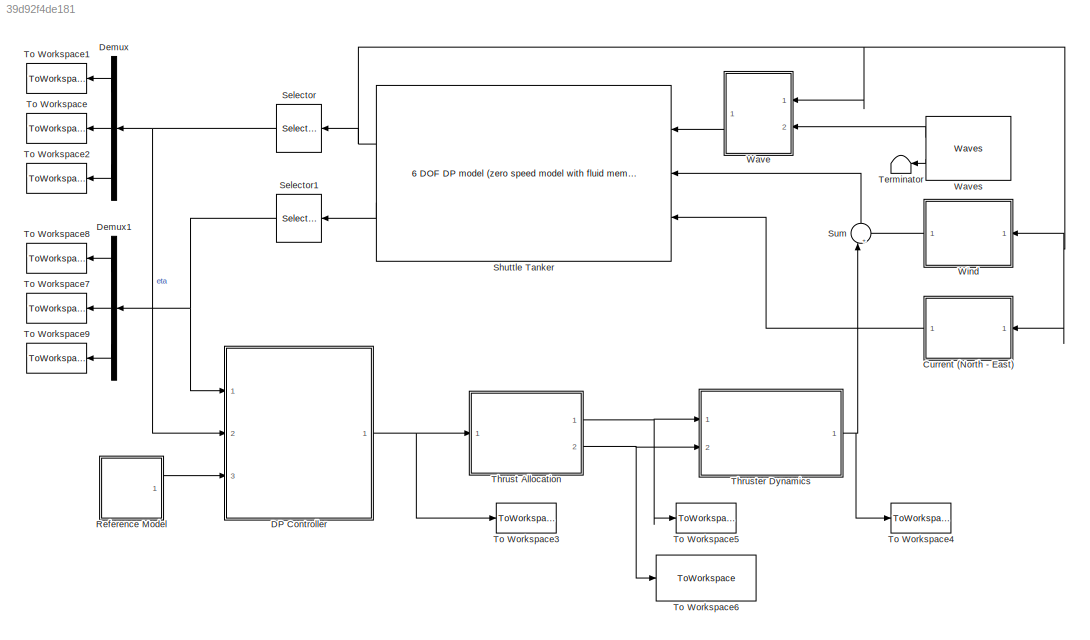
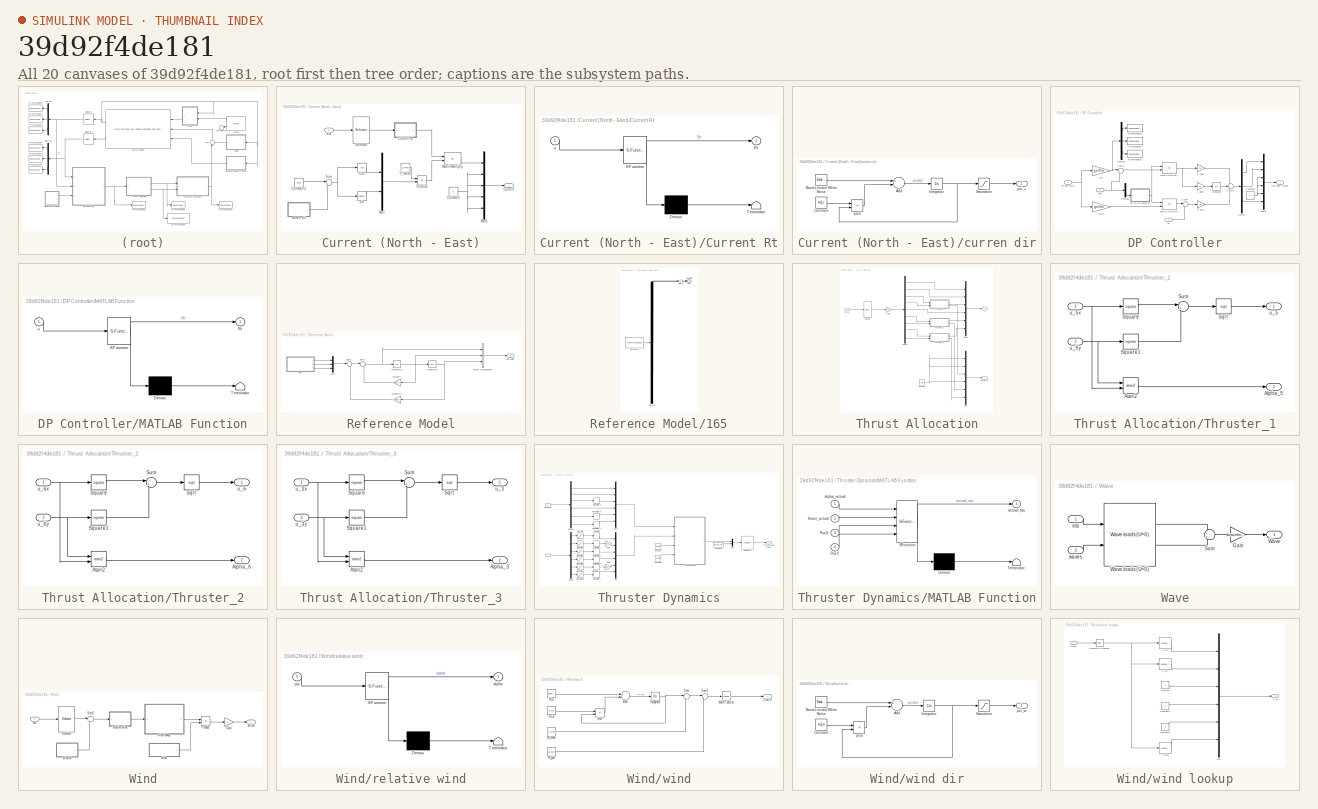
[diagram: thumbnail index - all 20 canvases of the model, root first then tree order]
MODEL slx_39d92f4de181
KIND model
CONFIG AbsTol = auto
CONFIG EnableMultiTasking = off
CONFIG FixedStep = 0.1
CONFIG MaxStep = auto
CONFIG MinStep = auto
CONFIG RelTol = 1e-3
CONFIG SampleTimeConstraint = Unconstrained
CONFIG Solver = FixedStepAuto
CONFIG SolverName = FixedStepAuto
CONFIG StartTime = 0.0
CONFIG StopTime = 2000
BLOCK [SubSystem] Current (North - East)
  Commented = on
  Ports = [1, 1]
  RequestExecContextInheritance = off
BLOCK [Constant] Current (North - East)/Constant
  Value = 0
BLOCK [Constant] Current (North - East)/Constant1
  Value = phi_c
BLOCK [Trigonometry] Current (North - East)/Cos
  Operator = cos
  Ports = [1, 1]
BLOCK [Outport] Current (North - East)/Current
  IconDisplay = Port number
BLOCK [SubSystem] Current (North - East)/Current Rt
  ErrorFcn = Stateflow.Translate.translate
  PermitHierarchicalResolution = ExplicitOnly
  Ports = [1, 1]
  RequestExecContextInheritance = off
  SFBlockType = MATLAB Function
  TreatAsAtomicUnit = on
BLOCK [Demux] Current (North - East)/Current Rt/ Demux 
  Outputs = 1
  Ports = [1, 1]
BLOCK [S-Function] Current (North - East)/Current Rt/ SFunction 
  EnableBusSupport = on
  FunctionName = sf_sfun
  PortCounts = [1 2]
  Ports = [1, 2]
  SFcnIsStateOwnerBlock = off
  SFunctionDeploymentMode = off
  Tag = Stateflow S-Function simulation2_Fault 3
BLOCK [Terminator] Current (North - East)/Current Rt/ Terminator 
BLOCK [Outport] Current (North - East)/Current Rt/Rt
  IconDisplay = Port number
BLOCK [Inport] Current (North - East)/Current Rt/u
  IconDisplay = Port number
BLOCK [Product] Current (North - East)/Matrix Multiply
  InputSameDT = off
  Multiplication = Matrix(*)
  OutDataTypeStr = Inherit: Inherit via internal rule
  Ports = [2, 1]
  RndMeth = Floor
  SaturateOnIntegerOverflow = off
BLOCK [Mux] Current (North - East)/Mux
  DisplayOption = bar
  Inputs = 2
  Ports = [2, 1]
BLOCK [Mux] Current (North - East)/Mux1
  DisplayOption = bar
  Inputs = 5
  Ports = [5, 1]
BLOCK [Product] Current (North - East)/Product
  InputSameDT = off
  OutDataTypeStr = Inherit: Inherit via internal rule
  Ports = [2, 1]
  RndMeth = Floor
  SaturateOnIntegerOverflow = off
BLOCK [Selector] Current (North - East)/Selector
  IndexOptions = Index vector (dialog)
  Indices = [6]
  InputPortWidth = 6
  OutputSizes = 1
  Ports = [1, 1]
BLOCK [Trigonometry] Current (North - East)/Sin
  Ports = [1, 1]
BLOCK [Sum] Current (North - East)/Sum
  IconShape = round
  InputSameDT = off
  Inputs = |++
  OutDataTypeStr = Inherit: Inherit via internal rule
  Ports = [2, 1]
  SaturateOnIntegerOverflow = off
BLOCK [Constant] Current (North - East)/V_mean
  Value = V_mean
BLOCK [SubSystem] Current (North - East)/curren dir
  Ports = [0, 1]
  RequestExecContextInheritance = off
BLOCK [Sum] Current (North - East)/curren dir/Add
  InputSameDT = off
  Inputs = +-
  OutDataTypeStr = Inherit: Inherit via internal rule
  Ports = [2, 1]
  SaturateOnIntegerOverflow = off
BLOCK [Reference] Current (North - East)/curren dir/Band-Limited White Noise  REF=simulink/Sources/Band-Limited
White Noise
  Ports = [0, 1]
  SourceBlock = simulink/Sources/Band-Limited\nWhite Noise
  SourceProductBaseCode = SL
  SourceProductName = Simulink
  SourceType = Band-Limited White Noise.
BLOCK [Constant] Current (North - East)/curren dir/Constant
  Value = mu2_c
BLOCK [Integrator] Current (North - East)/curren dir/Integrator
  Ports = [1, 1]
BLOCK [Saturate] Current (North - East)/curren dir/Saturation
  InputPortMap = u0
  LowerLimit = 5*pi/180
  Ports = [1, 1]
  UpperLimit = 5*pi/180
BLOCK [Product] Current (North - East)/curren dir/prod
  InputSameDT = off
  Inputs = **
  OutDataTypeStr = Inherit: Inherit via internal rule
  Ports = [2, 1]
  RndMeth = Floor
  SaturateOnIntegerOverflow = off
BLOCK [Outport] Current (North - East)/curren dir/psi_c 
  IconDisplay = Port number
BLOCK [Inport] Current (North - East)/eta
  IconDisplay = Port number
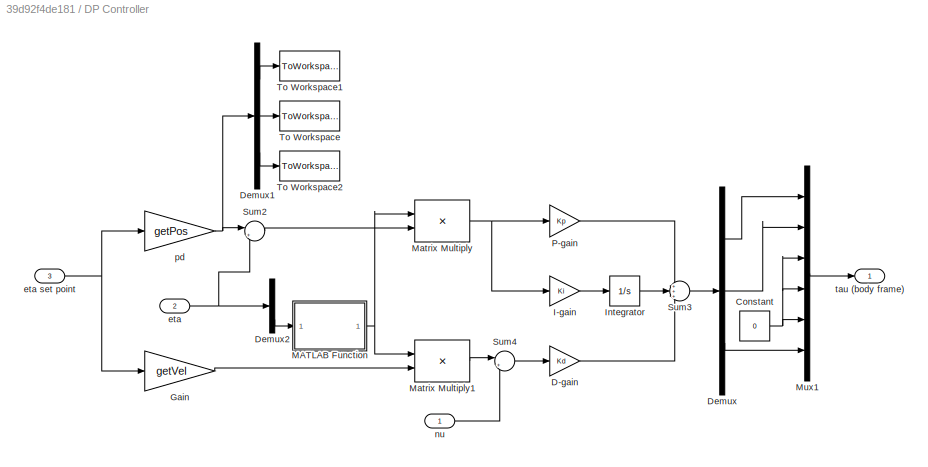
BLOCK [SubSystem] DP Controller
  Ports = [3, 1]
  RequestExecContextInheritance = off
BLOCK [Constant] DP Controller/Constant
  Value = 0
BLOCK [Gain] DP Controller/D-gain
  Gain = Kd
  Multiplication = Matrix(K*u)
  OutDataTypeStr = Inherit: Inherit via internal rule
  ParamDataTypeStr = Inherit: Inherit via internal rule
  SaturateOnIntegerOverflow = off
BLOCK [Demux] DP Controller/Demux
  DisplayOption = bar
  Outputs = 3
  Ports = [1, 3]
BLOCK [Demux] DP Controller/Demux1
  DisplayOption = bar
  Outputs = 3
  Ports = [1, 3]
BLOCK [Demux] DP Controller/Demux2
  DisplayOption = bar
  Outputs = 3
  Ports = [1, 3]
BLOCK [Gain] DP Controller/Gain
  Gain = getVel
  Multiplication = Matrix(u*K)
  OutDataTypeStr = Inherit: Inherit via internal rule
  ParamDataTypeStr = Inherit: Inherit via internal rule
  SaturateOnIntegerOverflow = off
BLOCK [Gain] DP Controller/I-gain
  Gain = Ki
  Multiplication = Matrix(K*u)
  OutDataTypeStr = Inherit: Inherit via internal rule
  ParamDataTypeStr = Inherit: Inherit via internal rule
  SaturateOnIntegerOverflow = off
BLOCK [Integrator] DP Controller/Integrator
  Ports = [1, 1]
BLOCK [SubSystem] DP Controller/MATLAB Function
  ErrorFcn = Stateflow.Translate.translate
  PermitHierarchicalResolution = ExplicitOnly
  Ports = [1, 1]
  RequestExecContextInheritance = off
  SFBlockType = MATLAB Function
  TreatAsAtomicUnit = on
BLOCK [Demux] DP Controller/MATLAB Function/ Demux 
  Outputs = 1
  Ports = [1, 1]
BLOCK [S-Function] DP Controller/MATLAB Function/ SFunction 
  EnableBusSupport = on
  FunctionName = sf_sfun
  PortCounts = [1 2]
  Ports = [1, 2]
  SFcnIsStateOwnerBlock = off
  SFunctionDeploymentMode = off
  Tag = Stateflow S-Function simulation2_Fault 1
BLOCK [Terminator] DP Controller/MATLAB Function/ Terminator 
BLOCK [Outport] DP Controller/MATLAB Function/Rt
  IconDisplay = Port number
BLOCK [Inport] DP Controller/MATLAB Function/u
  IconDisplay = Port number
BLOCK [Product] DP Controller/Matrix Multiply
  InputSameDT = off
  Multiplication = Matrix(*)
  OutDataTypeStr = Inherit: Inherit via internal rule
  Ports = [2, 1]
  RndMeth = Floor
  SaturateOnIntegerOverflow = off
BLOCK [Product] DP Controller/Matrix Multiply1
  InputSameDT = off
  Multiplication = Matrix(*)
  OutDataTypeStr = Inherit: Inherit via internal rule
  Ports = [2, 1]
  RndMeth = Floor
  SaturateOnIntegerOverflow = off
BLOCK [Mux] DP Controller/Mux1
  DisplayOption = bar
  Inputs = 6
  Ports = [6, 1]
BLOCK [Gain] DP Controller/P-gain
  Gain = Kp
  Multiplication = Matrix(K*u)
  OutDataTypeStr = Inherit: Inherit via internal rule
  ParamDataTypeStr = Inherit: Inherit via internal rule
  SaturateOnIntegerOverflow = off
BLOCK [Sum] DP Controller/Sum2
  IconShape = round
  InputSameDT = off
  Inputs = |+-
  OutDataTypeStr = Inherit: Inherit via internal rule
  Ports = [2, 1]
  SaturateOnIntegerOverflow = off
BLOCK [Sum] DP Controller/Sum3
  IconShape = round
  InputSameDT = off
  Inputs = +++
  OutDataTypeStr = Inherit: Inherit via internal rule
  Ports = [3, 1]
  SaturateOnIntegerOverflow = off
BLOCK [Sum] DP Controller/Sum4
  IconShape = round
  InputSameDT = off
  Inputs = |+-
  OutDataTypeStr = Inherit: Inherit via internal rule
  Ports = [2, 1]
  SaturateOnIntegerOverflow = off
BLOCK [ToWorkspace] DP Controller/To Workspace
  FixptAsFi = on
  MaxDataPoints = inf
  Ports = [1]
  SampleTime = -1
  Save2DSignal = 3-D array (concatenate along third dimension)
  SaveFormat = Timeseries
  VariableName = ref_east
BLOCK [ToWorkspace] DP Controller/To Workspace1
  FixptAsFi = on
  MaxDataPoints = inf
  Ports = [1]
  SampleTime = -1
  Save2DSignal = 3-D array (concatenate along third dimension)
  SaveFormat = Timeseries
  VariableName = ref_north
BLOCK [ToWorkspace] DP Controller/To Workspace2
  FixptAsFi = on
  MaxDataPoints = inf
  Ports = [1]
  SampleTime = -1
  Save2DSignal = 3-D array (concatenate along third dimension)
  SaveFormat = Timeseries
  VariableName = ref_yaw
BLOCK [Inport] DP Controller/eta
  IconDisplay = Port number
  Port = 2
BLOCK [Inport] DP Controller/eta set point
  IconDisplay = Port number
  Port = 3
BLOCK [Inport] DP Controller/nu
  IconDisplay = Port number
BLOCK [Gain] DP Controller/pd
  Gain = getPos
  Multiplication = Matrix(u*K)
  OutDataTypeStr = Inherit: Inherit via internal rule
  ParamDataTypeStr = Inherit: Inherit via internal rule
  SaturateOnIntegerOverflow = off
BLOCK [Outport] DP Controller/tau (body frame)
  IconDisplay = Port number
BLOCK [Demux] Demux
  DisplayOption = bar
  Outputs = 3
  Ports = [1, 3]
BLOCK [Demux] Demux1
  DisplayOption = bar
  Outputs = 3
  Ports = [1, 3]
BLOCK [SubSystem] Reference Model
  Ports = [0, 1]
  RequestExecContextInheritance = off
BLOCK [SubSystem] Reference Model/165
  ClipboardFcn = sigbuilder_block('clipboard');
  CloseFcn = sigbuilder_block('close');
  ContinueFcn = sigbuilder_block('continue');
  CopyFcn = sigbuilder_block('copy');
  DeleteFcn = sigbuilder_block('delete');
  LoadFcn = sigbuilder_block('load');
  MaskHideContents = on
  ModelCloseFcn = sigbuilder_block('modelClose');
  NameChangeFcn = sigbuilder_block('namechange');
  OpenFcn = sigbuilder_block('open',[5.4 30 1141.2 523.8 ]);
  PauseFcn = sigbuilder_block('pause');
  Ports = [0, 3]
  PreSaveFcn = sigbuilder_block('preSave');
  RequestExecContextInheritance = off
  StartFcn = sigbuilder_block('start');
  StopFcn = sigbuilder_block('stop');
  Tag = STV Subsys
BLOCK [Demux] Reference Model/165/Demux
  Outputs = 3
  Ports = [1, 3]
  Tag = STV Demux
BLOCK [Outport] Reference Model/165/East
  IconDisplay = Port number
  Port = 2
  Tag = STV Outport
BLOCK [FromWorkspace] Reference Model/165/FromWs
  SampleTime = 0
  Tag = STV FromWs
  VariableName = tuvar
  ZeroCross = on
BLOCK [Outport] Reference Model/165/Heading
  IconDisplay = Port number
  Port = 3
  Tag = STV Outport
BLOCK [Outport] Reference Model/165/North
  IconDisplay = Port number
  Tag = STV Outport
BLOCK [Integrator] Reference Model/Integrator1
  Ports = [1, 1]
BLOCK [Integrator] Reference Model/Integrator2
  Ports = [1, 1]
BLOCK [Mux] Reference Model/Mux
  DisplayOption = bar
  Inputs = 3
  Ports = [3, 1]
BLOCK [Outport] Reference Model/Set-point
  IconDisplay = Port number
BLOCK [Sum] Reference Model/Sum1
  IconShape = round
  InputSameDT = off
  Inputs = |+-
  OutDataTypeStr = Inherit: Inherit via internal rule
  Ports = [2, 1]
  SaturateOnIntegerOverflow = off
BLOCK [Sum] Reference Model/Sum2
  IconShape = round
  InputSameDT = off
  Inputs = |+-
  OutDataTypeStr = Inherit: Inherit via internal rule
  Ports = [2, 1]
  SaturateOnIntegerOverflow = off
BLOCK [Concatenate] Reference Model/Vector Concatenate
  ConcatenateDimension = 2
  Mode = Multidimensional array
  NumInputs = 3
  Ports = [3, 1]
BLOCK [Gain] Reference Model/omega*v
  Gain = Omega*165.7
  Multiplication = Matrix(K*u)
  OutDataTypeStr = Inherit: Inherit via internal rule
  ParamDataTypeStr = Inherit: Inherit via internal rule
  SaturateOnIntegerOverflow = off
BLOCK [Gain] Reference Model/omega^2*x
  Gain = (omega^2)*165.7
  Multiplication = Matrix(K*u)
  OutDataTypeStr = Inherit: Inherit via internal rule
  ParamDataTypeStr = Inherit: Inherit via internal rule
  SaturateOnIntegerOverflow = off
BLOCK [Selector] Selector
  IndexOptions = Index vector (dialog)
  Indices = [1 2 6]
  InputPortWidth = 6
  OutputSizes = 1
  Ports = [1, 1]
BLOCK [Selector] Selector1
  IndexOptions = Index vector (dialog)
  Indices = [1 2 6]
  InputPortWidth = 6
  OutputSizes = 1
  Ports = [1, 1]
BLOCK [Reference] Shuttle Tanker  REF=marine_hydro/Hydro Library/6 DOF DP model
 (zero speed model with fluid memory)
  Ports = [3, 2]
  SourceBlock = marine_hydro/Hydro Library/6 DOF DP model\n (zero speed model with fluid memory)
  SourceProductName = MSS Hydro
  SourceType = 6 DOF zero speed model
BLOCK [Sum] Sum
  IconShape = round
  InputSameDT = off
  Inputs = |++
  OutDataTypeStr = Inherit: Inherit via internal rule
  Ports = [2, 1]
  SaturateOnIntegerOverflow = off
BLOCK [Terminator] Terminator
  Commented = on
BLOCK [SubSystem] Thrust Allocation
  Ports = [1, 2]
  RequestExecContextInheritance = off
BLOCK [Constant] Thrust Allocation/Constant
  Value = pi/2
BLOCK [Demux] Thrust Allocation/Demux
  DisplayOption = bar
  Outputs = 9
  Ports = [1, 9]
BLOCK [Gain] Thrust Allocation/Gain
  Gain = Ce
  Multiplication = Matrix(K*u)
  OutDataTypeStr = Inherit: Inherit via internal rule
  ParamDataTypeStr = Inherit: Inherit via internal rule
  SaturateOnIntegerOverflow = off
BLOCK [Mux] Thrust Allocation/Mux
  DisplayOption = bar
  Inputs = 6
  Ports = [6, 1]
BLOCK [Mux] Thrust Allocation/Mux2
  DisplayOption = bar
  Inputs = 6
  Ports = [6, 1]
BLOCK [Selector] Thrust Allocation/Selector
  IndexOptions = Index vector (dialog)
  Indices = [1 2 6]
  InputPortWidth = 6
  OutputSizes = 1
  Ports = [1, 1]
BLOCK [SubSystem] Thrust Allocation/Thruster_1
  Ports = [2, 2]
  RequestExecContextInheritance = off
BLOCK [Outport] Thrust Allocation/Thruster_1/Alpha_5
  IconDisplay = Port number
  Port = 2
BLOCK [Trigonometry] Thrust Allocation/Thruster_1/Atan2
  Operator = atan2
  Ports = [2, 1]
BLOCK [Sqrt] Thrust Allocation/Thruster_1/Sqrt
BLOCK [Math] Thrust Allocation/Thruster_1/Square
  Operator = square
  Ports = [1, 1]
BLOCK [Math] Thrust Allocation/Thruster_1/Square1
  Operator = square
  Ports = [1, 1]
BLOCK [Sum] Thrust Allocation/Thruster_1/Sum
  IconShape = round
  InputSameDT = off
  Inputs = |++
  OutDataTypeStr = Inherit: Inherit via internal rule
  Ports = [2, 1]
  SaturateOnIntegerOverflow = off
BLOCK [Outport] Thrust Allocation/Thruster_1/u_5
  IconDisplay = Port number
BLOCK [Inport] Thrust Allocation/Thruster_1/u_5x
  IconDisplay = Port number
BLOCK [Inport] Thrust Allocation/Thruster_1/u_5y
  IconDisplay = Port number
  Port = 2
BLOCK [SubSystem] Thrust Allocation/Thruster_2
  Ports = [2, 2]
  RequestExecContextInheritance = off
BLOCK [Outport] Thrust Allocation/Thruster_2/Alpha_6
  IconDisplay = Port number
  Port = 2
BLOCK [Trigonometry] Thrust Allocation/Thruster_2/Atan2
  Operator = atan2
  Ports = [2, 1]
BLOCK [Sqrt] Thrust Allocation/Thruster_2/Sqrt
BLOCK [Math] Thrust Allocation/Thruster_2/Square
  Operator = square
  Ports = [1, 1]
BLOCK [Math] Thrust Allocation/Thruster_2/Square1
  Operator = square
  Ports = [1, 1]
BLOCK [Sum] Thrust Allocation/Thruster_2/Sum
  IconShape = round
  InputSameDT = off
  Inputs = |++
  OutDataTypeStr = Inherit: Inherit via internal rule
  Ports = [2, 1]
  SaturateOnIntegerOverflow = off
BLOCK [Outport] Thrust Allocation/Thruster_2/u_6
  IconDisplay = Port number
BLOCK [Inport] Thrust Allocation/Thruster_2/u_6x
  IconDisplay = Port number
BLOCK [Inport] Thrust Allocation/Thruster_2/u_6y
  IconDisplay = Port number
  Port = 2
BLOCK [SubSystem] Thrust Allocation/Thruster_3
  Ports = [2, 2]
  RequestExecContextInheritance = off
BLOCK [Outport] Thrust Allocation/Thruster_3/Alpha_3
  IconDisplay = Port number
  Port = 2
BLOCK [Trigonometry] Thrust Allocation/Thruster_3/Atan2
  Operator = atan2
  Ports = [2, 1]
BLOCK [Sqrt] Thrust Allocation/Thruster_3/Sqrt
BLOCK [Math] Thrust Allocation/Thruster_3/Square
  Operator = square
  Ports = [1, 1]
BLOCK [Math] Thrust Allocation/Thruster_3/Square1
  Operator = square
  Ports = [1, 1]
BLOCK [Sum] Thrust Allocation/Thruster_3/Sum
  IconShape = round
  InputSameDT = off
  Inputs = |++
  OutDataTypeStr = Inherit: Inherit via internal rule
  Ports = [2, 1]
  SaturateOnIntegerOverflow = off
BLOCK [Outport] Thrust Allocation/Thruster_3/u_3
  IconDisplay = Port number
BLOCK [Inport] Thrust Allocation/Thruster_3/u_3x
  IconDisplay = Port number
BLOCK [Inport] Thrust Allocation/Thruster_3/u_3y
  IconDisplay = Port number
  Port = 2
BLOCK [Outport] Thrust Allocation/alpha [rad]
  IconDisplay = Port number
  Port = 2
BLOCK [Inport] Thrust Allocation/tau_d
  IconDisplay = Port number
BLOCK [Outport] Thrust Allocation/u
  IconDisplay = Port number
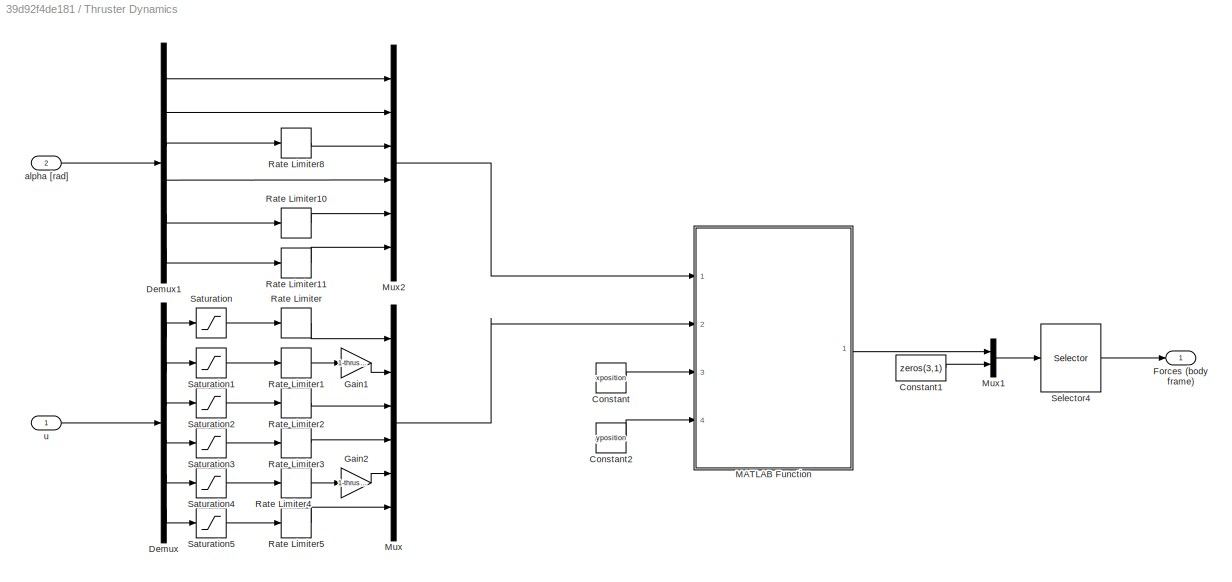
BLOCK [SubSystem] Thruster Dynamics
  Ports = [2, 1]
  RequestExecContextInheritance = off
BLOCK [Constant] Thruster Dynamics/Constant
  Value = xposition
BLOCK [Constant] Thruster Dynamics/Constant1
  Value = zeros(3,1)
BLOCK [Constant] Thruster Dynamics/Constant2
  Value = yposition
BLOCK [Demux] Thruster Dynamics/Demux
  DisplayOption = bar
  Outputs = 6
  Ports = [1, 6]
BLOCK [Demux] Thruster Dynamics/Demux1
  DisplayOption = bar
  Outputs = 6
  Ports = [1, 6]
BLOCK [Outport] Thruster Dynamics/Forces (body frame) 
  IconDisplay = Port number
BLOCK [Gain] Thruster Dynamics/Gain1
  Gain = 1-thrusterfault
  OutDataTypeStr = Inherit: Inherit via internal rule
  ParamDataTypeStr = Inherit: Inherit via internal rule
  SaturateOnIntegerOverflow = off
BLOCK [Gain] Thruster Dynamics/Gain2
  Gain = 1-thrusterfault
  OutDataTypeStr = Inherit: Inherit via internal rule
  ParamDataTypeStr = Inherit: Inherit via internal rule
  SaturateOnIntegerOverflow = off
BLOCK [SubSystem] Thruster Dynamics/MATLAB Function
  ErrorFcn = Stateflow.Translate.translate
  PermitHierarchicalResolution = ExplicitOnly
  Ports = [4, 1]
  RequestExecContextInheritance = off
  SFBlockType = MATLAB Function
  TreatAsAtomicUnit = on
BLOCK [Demux] Thruster Dynamics/MATLAB Function/ Demux 
  Outputs = 1
  Ports = [1, 1]
BLOCK [S-Function] Thruster Dynamics/MATLAB Function/ SFunction 
  EnableBusSupport = on
  FunctionName = sf_sfun
  PortCounts = [4 2]
  Ports = [4, 2]
  SFcnIsStateOwnerBlock = off
  SFunctionDeploymentMode = off
  Tag = Stateflow S-Function simulation2_Fault 4
BLOCK [Terminator] Thruster Dynamics/MATLAB Function/ Terminator 
BLOCK [Inport] Thruster Dynamics/MATLAB Function/PosX
  IconDisplay = Port number
  Port = 3
BLOCK [Inport] Thruster Dynamics/MATLAB Function/PosY
  IconDisplay = Port number
  Port = 4
BLOCK [Outport] Thruster Dynamics/MATLAB Function/actual_tau
  IconDisplay = Port number
BLOCK [Inport] Thruster Dynamics/MATLAB Function/alpha_actual
  IconDisplay = Port number
BLOCK [Inport] Thruster Dynamics/MATLAB Function/thrust_actual
  IconDisplay = Port number
  Port = 2
BLOCK [Mux] Thruster Dynamics/Mux
  DisplayOption = bar
  Inputs = 6
  Ports = [6, 1]
BLOCK [Mux] Thruster Dynamics/Mux1
  DisplayOption = bar
  Inputs = 2
  Ports = [2, 1]
BLOCK [Mux] Thruster Dynamics/Mux2
  DisplayOption = bar
  Inputs = 6
  Ports = [6, 1]
BLOCK [RateLimiter] Thruster Dynamics/Rate Limiter
  FallingSlewLimit = -thrustrate_1
  RisingSlewLimit = thrustrate_1
  SampleTimeMode = inherited
BLOCK [RateLimiter] Thruster Dynamics/Rate Limiter1
  FallingSlewLimit = -thrustrate_2
  RisingSlewLimit = thrustrate_2
  SampleTimeMode = inherited
BLOCK [RateLimiter] Thruster Dynamics/Rate Limiter10
  FallingSlewLimit = -rotationspeed_5
  RisingSlewLimit = rotationspeed_5
  SampleTimeMode = inherited
BLOCK [RateLimiter] Thruster Dynamics/Rate Limiter11
  FallingSlewLimit = -rotationspeed_6
  RisingSlewLimit = rotationspeed_6
  SampleTimeMode = inherited
BLOCK [RateLimiter] Thruster Dynamics/Rate Limiter2
  FallingSlewLimit = -thrustrate_3
  RisingSlewLimit = thrustrate_3
  SampleTimeMode = inherited
BLOCK [RateLimiter] Thruster Dynamics/Rate Limiter3
  FallingSlewLimit = -thrustrate_4
  RisingSlewLimit = thrustrate_4
  SampleTimeMode = inherited
BLOCK [RateLimiter] Thruster Dynamics/Rate Limiter4
  FallingSlewLimit = -thrustrate_5
  RisingSlewLimit = thrustrate_5
  SampleTimeMode = inherited
BLOCK [RateLimiter] Thruster Dynamics/Rate Limiter5
  FallingSlewLimit = -thrustrate_6
  RisingSlewLimit = thrustrate_6
  SampleTimeMode = inherited
BLOCK [RateLimiter] Thruster Dynamics/Rate Limiter8
  FallingSlewLimit = -rotationspeed_3
  RisingSlewLimit = rotationspeed_3
  SampleTimeMode = inherited
BLOCK [Saturate] Thruster Dynamics/Saturation
  InputPortMap = u0
  LowerLimit = -thrust_1
  Ports = [1, 1]
  UpperLimit = thrust_1
BLOCK [Saturate] Thruster Dynamics/Saturation1
  InputPortMap = u0
  LowerLimit = -thrust_2
  Ports = [1, 1]
  UpperLimit = thrust_2
BLOCK [Saturate] Thruster Dynamics/Saturation2
  InputPortMap = u0
  LowerLimit = -thrust_3
  Ports = [1, 1]
  UpperLimit = thrust_3
BLOCK [Saturate] Thruster Dynamics/Saturation3
  InputPortMap = u0
  LowerLimit = -thrust_4
  Ports = [1, 1]
  UpperLimit = thrust_4
BLOCK [Saturate] Thruster Dynamics/Saturation4
  InputPortMap = u0
  LowerLimit = -thrust_5
  Ports = [1, 1]
  UpperLimit = thrust_5
BLOCK [Saturate] Thruster Dynamics/Saturation5
  InputPortMap = u0
  LowerLimit = -thrust_6
  Ports = [1, 1]
  UpperLimit = thrust_6
BLOCK [Selector] Thruster Dynamics/Selector4
  IndexOptions = Index vector (dialog)
  Indices = [1 2 4 5 6 3]
  InputPortWidth = 6
  OutputSizes = 1
  Ports = [1, 1]
BLOCK [Inport] Thruster Dynamics/alpha [rad]
  IconDisplay = Port number
  Port = 2
BLOCK [Inport] Thruster Dynamics/u
  IconDisplay = Port number
BLOCK [ToWorkspace] To Workspace
  FixptAsFi = on
  MaxDataPoints = inf
  Ports = [1]
  SampleTime = -1
  Save2DSignal = 3-D array (concatenate along third dimension)
  SaveFormat = Timeseries
  VariableName = eta_east
BLOCK [ToWorkspace] To Workspace1
  FixptAsFi = on
  MaxDataPoints = inf
  Ports = [1]
  SampleTime = -1
  Save2DSignal = 3-D array (concatenate along third dimension)
  SaveFormat = Timeseries
  VariableName = eta_north
BLOCK [ToWorkspace] To Workspace2
  FixptAsFi = on
  MaxDataPoints = inf
  Ports = [1]
  SampleTime = -1
  Save2DSignal = 3-D array (concatenate along third dimension)
  SaveFormat = Timeseries
  VariableName = eta_yaw
BLOCK [ToWorkspace] To Workspace3
  FixptAsFi = on
  MaxDataPoints = inf
  Ports = [1]
  SampleTime = -1
  Save2DSignal = 3-D array (concatenate along third dimension)
  SaveFormat = Timeseries
  VariableName = tau_bd
BLOCK [ToWorkspace] To Workspace4
  FixptAsFi = on
  MaxDataPoints = inf
  Ports = [1]
  SampleTime = -1
  Save2DSignal = 3-D array (concatenate along third dimension)
  SaveFormat = Timeseries
  VariableName = force_bd
BLOCK [ToWorkspace] To Workspace5
  FixptAsFi = on
  MaxDataPoints = inf
  Ports = [1]
  SampleTime = -1
  Save2DSignal = 3-D array (concatenate along third dimension)
  SaveFormat = Timeseries
  VariableName = thruster_u
BLOCK [ToWorkspace] To Workspace6
  FixptAsFi = on
  MaxDataPoints = inf
  Ports = [1]
  SampleTime = -1
  Save2DSignal = 3-D array (concatenate along third dimension)
  SaveFormat = Timeseries
  VariableName = thruster_alpha
BLOCK [ToWorkspace] To Workspace7
  FixptAsFi = on
  MaxDataPoints = inf
  Ports = [1]
  SampleTime = -1
  Save2DSignal = 3-D array (concatenate along third dimension)
  SaveFormat = Timeseries
  VariableName = nu_y
BLOCK [ToWorkspace] To Workspace8
  FixptAsFi = on
  MaxDataPoints = inf
  Ports = [1]
  SampleTime = -1
  Save2DSignal = 3-D array (concatenate along third dimension)
  SaveFormat = Timeseries
  VariableName = nu_x
BLOCK [ToWorkspace] To Workspace9
  FixptAsFi = on
  MaxDataPoints = inf
  Ports = [1]
  SampleTime = -1
  Save2DSignal = 3-D array (concatenate along third dimension)
  SaveFormat = Timeseries
  VariableName = nu_phi
BLOCK [SubSystem] Wave
  Commented = on
  Ports = [2, 1]
  RequestExecContextInheritance = off
BLOCK [Gain] Wave/Gain
  Gain = waveforces
  OutDataTypeStr = Inherit: Inherit via internal rule
  ParamDataTypeStr = Inherit: Inherit via internal rule
  SaturateOnIntegerOverflow = off
BLOCK [Sum] Wave/Sum
  IconShape = round
  InputSameDT = off
  OutDataTypeStr = Inherit: Inherit via internal rule
  Ports = [2, 1]
  SaturateOnIntegerOverflow = off
BLOCK [Outport] Wave/Wave
  IconDisplay = Port number
BLOCK [Reference] Wave/Wave loads (U=0)  REF=marine_hydro/Hydro Library/Wave loads (U=0)
  Ports = [2, 2]
  SourceBlock = marine_hydro/Hydro Library/Wave loads (U=0)
  SourceProductName = MSS Hydro
  SourceType = SubSystem
BLOCK [Inport] Wave/eta
  IconDisplay = Port number
BLOCK [Inport] Wave/waves
  IconDisplay = Port number
  Port = 2
BLOCK [Reference] Waves  REF=marine_gnc/Environment/Waves/Waves  (lib defined in mdl_10d96c221ba8, mdl_45f1105420c6)
  Commented = on
  Ports = [0, 2]
  SourceBlock = marine_gnc/Environment/Waves/Waves
  SourceProductName = MSS GNC
  SourceType = Waves
BLOCK [SubSystem] Wind
  Commented = on
  Ports = [1, 1]
  RequestExecContextInheritance = off
BLOCK [Gain] Wind/Gain
  OutDataTypeStr = Inherit: Inherit via internal rule
  ParamDataTypeStr = Inherit: Inherit via internal rule
  SaturateOnIntegerOverflow = off
BLOCK [Product] Wind/Product
  InputSameDT = off
  OutDataTypeStr = Inherit: Inherit via internal rule
  Ports = [2, 1]
  RndMeth = Floor
  SaturateOnIntegerOverflow = off
BLOCK [Selector] Wind/Selector
  IndexOptions = Index vector (dialog)
  Indices = [6]
  InputPortWidth = 6
  OutputSizes = 1
  Ports = [1, 1]
BLOCK [Sum] Wind/Sum2
  IconShape = round
  InputSameDT = off
  Inputs = |-+
  OutDataTypeStr = Inherit: Inherit via internal rule
  Ports = [2, 1]
  SaturateOnIntegerOverflow = off
BLOCK [Outport] Wind/Wind
  IconDisplay = Port number
BLOCK [Inport] Wind/eta
  IconDisplay = Port number
BLOCK [SubSystem] Wind/relative wind
  ErrorFcn = Stateflow.Translate.translate
  PermitHierarchicalResolution = ExplicitOnly
  Ports = [1, 1]
  RequestExecContextInheritance = off
  SFBlockType = MATLAB Function
  TreatAsAtomicUnit = on
BLOCK [Demux] Wind/relative wind/ Demux 
  Outputs = 1
  Ports = [1, 1]
BLOCK [S-Function] Wind/relative wind/ SFunction 
  EnableBusSupport = on
  FunctionName = sf_sfun
  PortCounts = [1 2]
  Ports = [1, 2]
  SFcnIsStateOwnerBlock = off
  SFunctionDeploymentMode = off
  Tag = Stateflow S-Function simulation2_Fault 2
BLOCK [Terminator] Wind/relative wind/ Terminator 
BLOCK [Outport] Wind/relative wind/alpha
  IconDisplay = Port number
BLOCK [Inport] Wind/relative wind/psi
  IconDisplay = Port number
BLOCK [SubSystem] Wind/wind
  Ports = [0, 1]
  RequestExecContextInheritance = off
BLOCK [SubSystem] Wind/wind dir
  Ports = [0, 1]
  RequestExecContextInheritance = off
BLOCK [Sum] Wind/wind dir/Add
  InputSameDT = off
  Inputs = +-
  OutDataTypeStr = Inherit: Inherit via internal rule
  Ports = [2, 1]
  SaturateOnIntegerOverflow = off
BLOCK [Reference] Wind/wind dir/Band-Limited White Noise  REF=simulink/Sources/Band-Limited
White Noise
  Ports = [0, 1]
  SourceBlock = simulink/Sources/Band-Limited\nWhite Noise
  SourceProductBaseCode = SL
  SourceProductName = Simulink
  SourceType = Band-Limited White Noise.
BLOCK [Constant] Wind/wind dir/Constant
  Value = mu2_w
BLOCK [Integrator] Wind/wind dir/Integrator
  Ports = [1, 1]
BLOCK [Saturate] Wind/wind dir/Saturation
  InputPortMap = u0
  LowerLimit = 5*pi/180
  Ports = [1, 1]
  UpperLimit = 5*pi/180
BLOCK [Product] Wind/wind dir/prod
  InputSameDT = off
  Inputs = **
  OutDataTypeStr = Inherit: Inherit via internal rule
  Ports = [2, 1]
  RndMeth = Floor
  SaturateOnIntegerOverflow = off
BLOCK [Outport] Wind/wind dir/psi_w
  IconDisplay = Port number
BLOCK [SubSystem] Wind/wind lookup
  Ports = [1, 1]
  RequestExecContextInheritance = off
BLOCK [Outport] Wind/wind lookup/C_w
  IconDisplay = Port number
BLOCK [Lookup_n-D] Wind/wind lookup/C_wpsi
  BreakpointsForDimension1 = psi_r
  InternalRulePriority = Speed
  NumberOfTableDimensions = 1
  Ports = [1, 1]
  RndMeth = Simplest
  Table = C_wn
BLOCK [Lookup_n-D] Wind/wind lookup/C_wx
  BreakpointsForDimension1 = psi_r
  InternalRulePriority = Speed
  NumberOfTableDimensions = 1
  Ports = [1, 1]
  RndMeth = Simplest
  Table = C_wx
BLOCK [Lookup_n-D] Wind/wind lookup/C_wy
  BreakpointsForDimension1 = psi_r
  InternalRulePriority = Speed
  NumberOfTableDimensions = 1
  Ports = [1, 1]
  RndMeth = Simplest
  Table = C_wy
BLOCK [Constant] Wind/wind lookup/Constant
  Value = 0
BLOCK [Constant] Wind/wind lookup/Constant1
  Value = 0
BLOCK [Constant] Wind/wind lookup/Constant2
  Value = 0
BLOCK [Mux] Wind/wind lookup/Mux
  DisplayOption = bar
  Inputs = 6
  Ports = [6, 1]
BLOCK [Reference] Wind/wind lookup/Radians to Degrees  REF=simulink_extras/Transformations/Radians
to Degrees
  Ports = [1, 1]
  SourceBlock = simulink_extras/Transformations/Radians\nto Degrees
  SourceProductBaseCode = SL
  SourceProductName = Simulink
  SourceType = RadiansToDegrees
BLOCK [Inport] Wind/wind lookup/alpha
  IconDisplay = Port number
BLOCK [Sum] Wind/wind/Add
  InputSameDT = off
  Inputs = +-
  OutDataTypeStr = Inherit: Inherit via internal rule
  Ports = [2, 1]
  SaturateOnIntegerOverflow = off
BLOCK [Integrator] Wind/wind/Integrator
  Ports = [1, 1]
BLOCK [Math] Wind/wind/Math Function
  Operator = magnitude^2
  Ports = [1, 1]
BLOCK [Sum] Wind/wind/Sum
  IconShape = round
  InputSameDT = off
  Inputs = |++
  OutDataTypeStr = Inherit: Inherit via internal rule
  Ports = [2, 1]
  SaturateOnIntegerOverflow = off
BLOCK [Sum] Wind/wind/Sum1
  IconShape = round
  InputSameDT = off
  Inputs = |++
  OutDataTypeStr = Inherit: Inherit via internal rule
  Ports = [2, 1]
  SaturateOnIntegerOverflow = off
BLOCK [Constant] Wind/wind/W_gust
  Value = W_gust
BLOCK [Constant] Wind/wind/W_mean 
  Value = W_mean
BLOCK [Reference] Wind/wind/W_w  REF=simulink/Sources/Band-Limited
White Noise
  Ports = [0, 1]
  SourceBlock = simulink/Sources/Band-Limited\nWhite Noise
  SourceProductBaseCode = SL
  SourceProductName = Simulink
  SourceType = Band-Limited White Noise.
BLOCK [Constant] Wind/wind/mu_w
  Value = mu_w
BLOCK [Product] Wind/wind/prod
  InputSameDT = off
  Inputs = **
  OutDataTypeStr = Inherit: Inherit via internal rule
  Ports = [2, 1]
  RndMeth = Floor
  SaturateOnIntegerOverflow = off
BLOCK [Outport] Wind/wind/|Vw|^2
  IconDisplay = Port number
LINE Current (North - East)/Constant1:1 -> Current (North - East)/Sum:1
NET Current (North - East)/Constant:1 -> Current (North - East)/Mux1:2, Current (North - East)/Mux1:3, Current (North - East)/Mux1:4, Current (North - East)/Mux1:5
LINE Current (North - East)/Cos:1 -> Current (North - East)/Mux:1
LINE Current (North - East)/Current Rt:1 -> Current (North - East)/Matrix Multiply:1
LINE Current (North - East)/Matrix Multiply:1 -> Current (North - East)/Mux1:1
LINE Current (North - East)/Mux1:1 -> Current (North - East)/Current:1
LINE Current (North - East)/Mux:1 -> Current (North - East)/Product:2
LINE Current (North - East)/Product:1 -> Current (North - East)/Matrix Multiply:2
LINE Current (North - East)/Selector:1 -> Current (North - East)/Current Rt:1
LINE Current (North - East)/Sin:1 -> Current (North - East)/Mux:2
NET Current (North - East)/Sum:1 -> Current (North - East)/Cos:1, Current (North - East)/Sin:1
LINE Current (North - East)/V_mean:1 -> Current (North - East)/Product:1
LINE Current (North - East)/curren dir/Add:1 -> Current (North - East)/curren dir/Integrator:1
LINE Current (North - East)/curren dir/Band-Limited White Noise:1 -> Current (North - East)/curren dir/Add:1
LINE Current (North - East)/curren dir/Constant:1 -> Current (North - East)/curren dir/prod:1
NET Current (North - East)/curren dir/Integrator:1 -> Current (North - East)/curren dir/Saturation:1, Current (North - East)/curren dir/prod:2
LINE Current (North - East)/curren dir/Saturation:1 -> Current (North - East)/curren dir/psi_c :1
LINE Current (North - East)/curren dir/prod:1 -> Current (North - East)/curren dir/Add:2
LINE Current (North - East)/curren dir:1 -> Current (North - East)/Sum:2
LINE Current (North - East)/eta:1 -> Current (North - East)/Selector:1
LINE Current (North - East):1 -> Shuttle Tanker:3
NET DP Controller/Constant:1 -> DP Controller/Mux1:3, DP Controller/Mux1:4, DP Controller/Mux1:5
LINE DP Controller/D-gain:1 -> DP Controller/Sum3:3
LINE DP Controller/Demux1:1 -> DP Controller/To Workspace1:1
LINE DP Controller/Demux1:2 -> DP Controller/To Workspace:1
LINE DP Controller/Demux1:3 -> DP Controller/To Workspace2:1
LINE DP Controller/Demux2:3 -> DP Controller/MATLAB Function:1
LINE DP Controller/Demux:1 -> DP Controller/Mux1:1
LINE DP Controller/Demux:2 -> DP Controller/Mux1:2
LINE DP Controller/Demux:3 -> DP Controller/Mux1:6
LINE DP Controller/Gain:1 -> DP Controller/Matrix Multiply1:2
LINE DP Controller/I-gain:1 -> DP Controller/Integrator:1
LINE DP Controller/Integrator:1 -> DP Controller/Sum3:2
NET DP Controller/MATLAB Function:1 -> DP Controller/Matrix Multiply1:1, DP Controller/Matrix Multiply:1
LINE DP Controller/Matrix Multiply1:1 -> DP Controller/Sum4:1
NET DP Controller/Matrix Multiply:1 -> DP Controller/I-gain:1, DP Controller/P-gain:1
LINE DP Controller/Mux1:1 -> DP Controller/tau (body frame):1
LINE DP Controller/P-gain:1 -> DP Controller/Sum3:1
LINE DP Controller/Sum2:1 -> DP Controller/Matrix Multiply:2
LINE DP Controller/Sum3:1 -> DP Controller/Demux:1
LINE DP Controller/Sum4:1 -> DP Controller/D-gain:1
NET DP Controller/eta set point:1 -> DP Controller/Gain:1, DP Controller/pd:1
NET DP Controller/eta:1 -> DP Controller/Demux2:1, DP Controller/Sum2:2
LINE DP Controller/nu:1 -> DP Controller/Sum4:2
NET DP Controller/pd:1 -> DP Controller/Demux1:1, DP Controller/Sum2:1
NET DP Controller:1 -> Thrust Allocation:1, To Workspace3:1
LINE Demux1:1 -> To Workspace8:1
LINE Demux1:2 -> To Workspace7:1
LINE Demux1:3 -> To Workspace9:1
LINE Demux:1 -> To Workspace1:1
LINE Demux:2 -> To Workspace:1
LINE Demux:3 -> To Workspace2:1
LINE Reference Model/165:1 -> Reference Model/Mux:1
LINE Reference Model/165:2 -> Reference Model/Mux:2
LINE Reference Model/165:3 -> Reference Model/Mux:3
NET Reference Model/Integrator1:1 -> Reference Model/Integrator2:1, Reference Model/Vector Concatenate:2, Reference Model/omega*v:1
NET Reference Model/Integrator2:1 -> Reference Model/Vector Concatenate:3, Reference Model/omega^2*x:1
LINE Reference Model/Mux:1 -> Reference Model/Sum1:1
LINE Reference Model/Sum1:1 -> Reference Model/Sum2:1
NET Reference Model/Sum2:1 -> Reference Model/Integrator1:1, Reference Model/Vector Concatenate:1
LINE Reference Model/Vector Concatenate:1 -> Reference Model/Set-point:1
LINE Reference Model/omega*v:1 -> Reference Model/Sum2:2
LINE Reference Model/omega^2*x:1 -> Reference Model/Sum1:2
LINE Reference Model:1 -> DP Controller:3
NET Selector1:1 -> DP Controller:1, Demux1:1
NET Selector:1 -> DP Controller:2, Demux:1
NET Shuttle Tanker:1 -> Current (North - East):1, Selector:1, Wave:1, Wind:1
LINE Shuttle Tanker:2 -> Selector1:1
LINE Sum:1 -> Shuttle Tanker:2
NET Thrust Allocation/Constant:1 -> Thrust Allocation/Mux:1, Thrust Allocation/Mux:2, Thrust Allocation/Mux:4
LINE Thrust Allocation/Demux:1 -> Thrust Allocation/Mux2:1
LINE Thrust Allocation/Demux:2 -> Thrust Allocation/Mux2:2
LINE Thrust Allocation/Demux:3 -> Thrust Allocation/Thruster_3:1
LINE Thrust Allocation/Demux:4 -> Thrust Allocation/Thruster_3:2
LINE Thrust Allocation/Demux:5 -> Thrust Allocation/Mux2:4
LINE Thrust Allocation/Demux:6 -> Thrust Allocation/Thruster_1:1
LINE Thrust Allocation/Demux:7 -> Thrust Allocation/Thruster_1:2
LINE Thrust Allocation/Demux:8 -> Thrust Allocation/Thruster_2:1
LINE Thrust Allocation/Demux:9 -> Thrust Allocation/Thruster_2:2
LINE Thrust Allocation/Gain:1 -> Thrust Allocation/Demux:1
LINE Thrust Allocation/Mux2:1 -> Thrust Allocation/u:1
LINE Thrust Allocation/Mux:1 -> Thrust Allocation/alpha [rad]:1
LINE Thrust Allocation/Selector:1 -> Thrust Allocation/Gain:1
LINE Thrust Allocation/Thruster_1/Atan2:1 -> Thrust Allocation/Thruster_1/Alpha_5:1
LINE Thrust Allocation/Thruster_1/Sqrt:1 -> Thrust Allocation/Thruster_1/u_5:1
LINE Thrust Allocation/Thruster_1/Square1:1 -> Thrust Allocation/Thruster_1/Sum:2
LINE Thrust Allocation/Thruster_1/Square:1 -> Thrust Allocation/Thruster_1/Sum:1
LINE Thrust Allocation/Thruster_1/Sum:1 -> Thrust Allocation/Thruster_1/Sqrt:1
NET Thrust Allocation/Thruster_1/u_5x:1 -> Thrust Allocation/Thruster_1/Atan2:2, Thrust Allocation/Thruster_1/Square:1
NET Thrust Allocation/Thruster_1/u_5y:1 -> Thrust Allocation/Thruster_1/Atan2:1, Thrust Allocation/Thruster_1/Square1:1
LINE Thrust Allocation/Thruster_1:1 -> Thrust Allocation/Mux2:5
LINE Thrust Allocation/Thruster_1:2 -> Thrust Allocation/Mux:5
LINE Thrust Allocation/Thruster_2/Atan2:1 -> Thrust Allocation/Thruster_2/Alpha_6:1
LINE Thrust Allocation/Thruster_2/Sqrt:1 -> Thrust Allocation/Thruster_2/u_6:1
LINE Thrust Allocation/Thruster_2/Square1:1 -> Thrust Allocation/Thruster_2/Sum:2
LINE Thrust Allocation/Thruster_2/Square:1 -> Thrust Allocation/Thruster_2/Sum:1
LINE Thrust Allocation/Thruster_2/Sum:1 -> Thrust Allocation/Thruster_2/Sqrt:1
NET Thrust Allocation/Thruster_2/u_6x:1 -> Thrust Allocation/Thruster_2/Atan2:2, Thrust Allocation/Thruster_2/Square:1
NET Thrust Allocation/Thruster_2/u_6y:1 -> Thrust Allocation/Thruster_2/Atan2:1, Thrust Allocation/Thruster_2/Square1:1
LINE Thrust Allocation/Thruster_2:1 -> Thrust Allocation/Mux2:6
LINE Thrust Allocation/Thruster_2:2 -> Thrust Allocation/Mux:6
LINE Thrust Allocation/Thruster_3/Atan2:1 -> Thrust Allocation/Thruster_3/Alpha_3:1
LINE Thrust Allocation/Thruster_3/Sqrt:1 -> Thrust Allocation/Thruster_3/u_3:1
LINE Thrust Allocation/Thruster_3/Square1:1 -> Thrust Allocation/Thruster_3/Sum:2
LINE Thrust Allocation/Thruster_3/Square:1 -> Thrust Allocation/Thruster_3/Sum:1
LINE Thrust Allocation/Thruster_3/Sum:1 -> Thrust Allocation/Thruster_3/Sqrt:1
NET Thrust Allocation/Thruster_3/u_3x:1 -> Thrust Allocation/Thruster_3/Atan2:2, Thrust Allocation/Thruster_3/Square:1
NET Thrust Allocation/Thruster_3/u_3y:1 -> Thrust Allocation/Thruster_3/Atan2:1, Thrust Allocation/Thruster_3/Square1:1
LINE Thrust Allocation/Thruster_3:1 -> Thrust Allocation/Mux2:3
LINE Thrust Allocation/Thruster_3:2 -> Thrust Allocation/Mux:3
LINE Thrust Allocation/tau_d:1 -> Thrust Allocation/Selector:1
NET Thrust Allocation:1 -> Thruster Dynamics:1, To Workspace5:1
NET Thrust Allocation:2 -> Thruster Dynamics:2, To Workspace6:1
LINE Thruster Dynamics/Constant1:1 -> Thruster Dynamics/Mux1:2
LINE Thruster Dynamics/Constant2:1 -> Thruster Dynamics/MATLAB Function:4
LINE Thruster Dynamics/Constant:1 -> Thruster Dynamics/MATLAB Function:3
LINE Thruster Dynamics/Demux1:1 -> Thruster Dynamics/Mux2:1
LINE Thruster Dynamics/Demux1:2 -> Thruster Dynamics/Mux2:2
LINE Thruster Dynamics/Demux1:3 -> Thruster Dynamics/Rate Limiter8:1
LINE Thruster Dynamics/Demux1:4 -> Thruster Dynamics/Mux2:4
LINE Thruster Dynamics/Demux1:5 -> Thruster Dynamics/Rate Limiter10:1
LINE Thruster Dynamics/Demux1:6 -> Thruster Dynamics/Rate Limiter11:1
LINE Thruster Dynamics/Demux:1 -> Thruster Dynamics/Saturation:1
LINE Thruster Dynamics/Demux:2 -> Thruster Dynamics/Saturation1:1
LINE Thruster Dynamics/Demux:3 -> Thruster Dynamics/Saturation2:1
LINE Thruster Dynamics/Demux:4 -> Thruster Dynamics/Saturation3:1
LINE Thruster Dynamics/Demux:5 -> Thruster Dynamics/Saturation4:1
LINE Thruster Dynamics/Demux:6 -> Thruster Dynamics/Saturation5:1
LINE Thruster Dynamics/Gain1:1 -> Thruster Dynamics/Mux:2
LINE Thruster Dynamics/Gain2:1 -> Thruster Dynamics/Mux:5
LINE Thruster Dynamics/MATLAB Function:1 -> Thruster Dynamics/Mux1:1
LINE Thruster Dynamics/Mux1:1 -> Thruster Dynamics/Selector4:1
LINE Thruster Dynamics/Mux2:1 -> Thruster Dynamics/MATLAB Function:1
LINE Thruster Dynamics/Mux:1 -> Thruster Dynamics/MATLAB Function:2
LINE Thruster Dynamics/Rate Limiter10:1 -> Thruster Dynamics/Mux2:5
LINE Thruster Dynamics/Rate Limiter11:1 -> Thruster Dynamics/Mux2:6
LINE Thruster Dynamics/Rate Limiter1:1 -> Thruster Dynamics/Gain1:1
LINE Thruster Dynamics/Rate Limiter2:1 -> Thruster Dynamics/Mux:3
LINE Thruster Dynamics/Rate Limiter3:1 -> Thruster Dynamics/Mux:4
LINE Thruster Dynamics/Rate Limiter4:1 -> Thruster Dynamics/Gain2:1
LINE Thruster Dynamics/Rate Limiter5:1 -> Thruster Dynamics/Mux:6
LINE Thruster Dynamics/Rate Limiter8:1 -> Thruster Dynamics/Mux2:3
LINE Thruster Dynamics/Rate Limiter:1 -> Thruster Dynamics/Mux:1
LINE Thruster Dynamics/Saturation1:1 -> Thruster Dynamics/Rate Limiter1:1
LINE Thruster Dynamics/Saturation2:1 -> Thruster Dynamics/Rate Limiter2:1
LINE Thruster Dynamics/Saturation3:1 -> Thruster Dynamics/Rate Limiter3:1
LINE Thruster Dynamics/Saturation4:1 -> Thruster Dynamics/Rate Limiter4:1
LINE Thruster Dynamics/Saturation5:1 -> Thruster Dynamics/Rate Limiter5:1
LINE Thruster Dynamics/Saturation:1 -> Thruster Dynamics/Rate Limiter:1
LINE Thruster Dynamics/Selector4:1 -> Thruster Dynamics/Forces (body frame) :1
LINE Thruster Dynamics/alpha [rad]:1 -> Thruster Dynamics/Demux1:1
LINE Thruster Dynamics/u:1 -> Thruster Dynamics/Demux:1
NET Thruster Dynamics:1 -> Sum:1, To Workspace4:1
LINE Wave/Gain:1 -> Wave/Wave:1
LINE Wave/Sum:1 -> Wave/Gain:1
LINE Wave/Wave loads (U=0):1 -> Wave/Sum:1
LINE Wave/Wave loads (U=0):2 -> Wave/Sum:2
LINE Wave/eta:1 -> Wave/Wave loads (U=0):1
LINE Wave/waves:1 -> Wave/Wave loads (U=0):2
LINE Wave:1 -> Shuttle Tanker:1
LINE Waves:1 -> Wave:2
LINE Waves:2 -> Terminator:1
LINE Wind/Gain:1 -> Wind/Wind:1
LINE Wind/Product:1 -> Wind/Gain:1
LINE Wind/Selector:1 -> Wind/Sum2:1
LINE Wind/Sum2:1 -> Wind/relative wind:1
LINE Wind/eta:1 -> Wind/Selector:1
LINE Wind/relative wind:1 -> Wind/wind lookup:1
LINE Wind/wind dir/Add:1 -> Wind/wind dir/Integrator:1
LINE Wind/wind dir/Band-Limited White Noise:1 -> Wind/wind dir/Add:1
LINE Wind/wind dir/Constant:1 -> Wind/wind dir/prod:1
NET Wind/wind dir/Integrator:1 -> Wind/wind dir/Saturation:1, Wind/wind dir/prod:2
LINE Wind/wind dir/Saturation:1 -> Wind/wind dir/psi_w:1
LINE Wind/wind dir/prod:1 -> Wind/wind dir/Add:2
LINE Wind/wind dir:1 -> Wind/Sum2:2
LINE Wind/wind lookup/C_wpsi:1 -> Wind/wind lookup/Mux:6
LINE Wind/wind lookup/C_wx:1 -> Wind/wind lookup/Mux:1
LINE Wind/wind lookup/C_wy:1 -> Wind/wind lookup/Mux:2
LINE Wind/wind lookup/Constant1:1 -> Wind/wind lookup/Mux:4
LINE Wind/wind lookup/Constant2:1 -> Wind/wind lookup/Mux:5
LINE Wind/wind lookup/Constant:1 -> Wind/wind lookup/Mux:3
LINE Wind/wind lookup/Mux:1 -> Wind/wind lookup/C_w:1
NET Wind/wind lookup/Radians to Degrees:1 -> Wind/wind lookup/C_wpsi:1, Wind/wind lookup/C_wx:1, Wind/wind lookup/C_wy:1
LINE Wind/wind lookup/alpha:1 -> Wind/wind lookup/Radians to Degrees:1
LINE Wind/wind lookup:1 -> Wind/Product:1
LINE Wind/wind/Add:1 -> Wind/wind/Integrator:1
NET Wind/wind/Integrator:1 -> Wind/wind/Sum:1, Wind/wind/prod:2
LINE Wind/wind/Math Function:1 -> Wind/wind/|Vw|^2:1
LINE Wind/wind/Sum1:1 -> Wind/wind/Math Function:1
LINE Wind/wind/Sum:1 -> Wind/wind/Sum1:1
LINE Wind/wind/W_gust:1 -> Wind/wind/Sum1:2
LINE Wind/wind/W_mean :1 -> Wind/wind/Sum:2
LINE Wind/wind/W_w:1 -> Wind/wind/Add:1
LINE Wind/wind/mu_w:1 -> Wind/wind/prod:1
LINE Wind/wind/prod:1 -> Wind/wind/Add:2
LINE Wind/wind:1 -> Wind/Product:2
LINE Wind:1 -> Sum:2
note: NET lines group one-source signal fan-out (src -> all destinations, sorted); 1:1 wires keep LINE
CHART DP Controller/MATLAB Function states=1 transitions=1
  STATE_LABEL 'eML_blk_kernel()'
  STATE_LABEL 'SCRIPT:\nfunction Rt = fcn(u)\n\nR=[cos(u) -sin(u) 0; sin(u) cos(u) 0; 0 0 1];\nRt=transpose(R);\n\nend'
CHART Wind/relative wind states=1 transitions=1
  STATE_LABEL 'eML_blk_kernel()'
  STATE_LABEL 'SCRIPT:\nfunction alpha = psi2alpha(psi)\n\nalph = pi-psi;\n\nif alph < 0\n    alph = alph+2*pi;\nend\n\nalpha = alph;\n'
CHART Current (North - East)/Current Rt states=1 transitions=1
  STATE_LABEL 'eML_blk_kernel()'
  STATE_LABEL 'SCRIPT:\nfunction Rt = fcn(u)\n\nR=[cos(u) -sin(u); sin(u) cos(u)];\nRt=transpose(R);\n\nend'
CHART Thruster Dynamics/MATLAB Function states=1 transitions=1
  STATE_LABEL 'eML_blk_kernel()'
  STATE_LABEL 'SCRIPT:\nfunction actual_tau   = fcn(alpha_actual,thrust_actual,PosX,PosY)\n\n    Alpha_surge =[cos(alpha_actual(1)) cos(alpha_actual(2)) cos(alpha_actual(3)) cos(alpha_actual(4)) cos(alpha_actual(5)) cos(alpha_actual(6))];  \n    Alpha_sway = [sin(alpha_actual(1)) sin(alpha_actual(2)) sin(alpha_actual(3)) sin(alpha_actual(4)) sin(alpha_actual(5)) sin(alpha_actual(6))];\n    Alpha_yaw = [sin(alpha_actu...<+451ch>'
